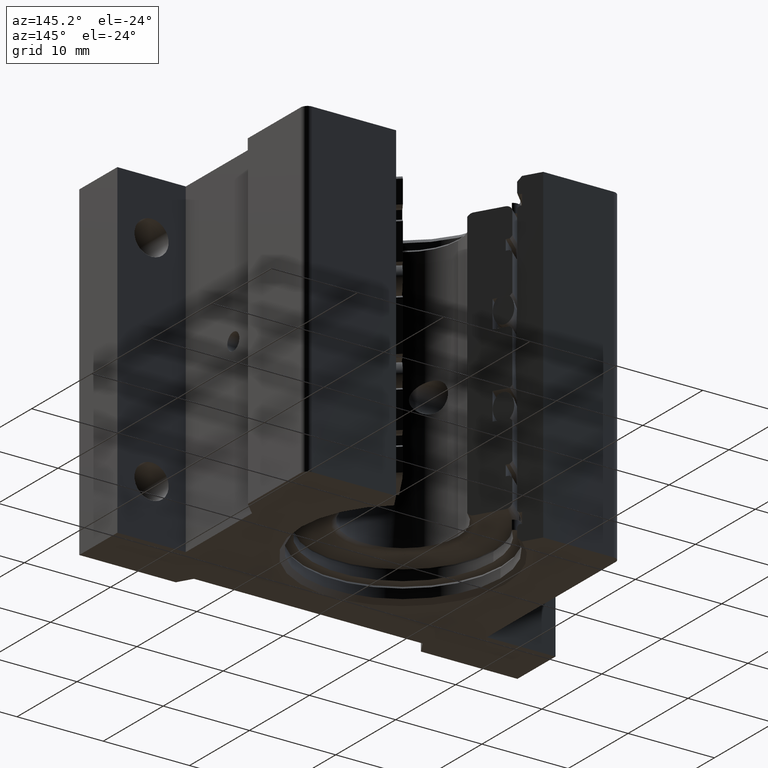
[diagram: clean part render]
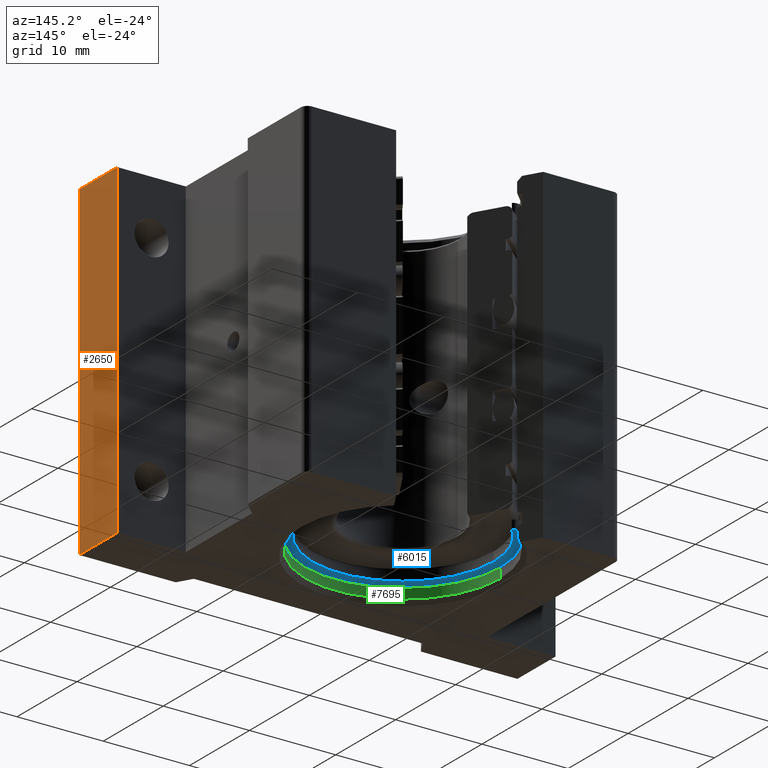
[diagram: same view with three faces highlighted in distinct colors, each labeled with its STEP entity id]
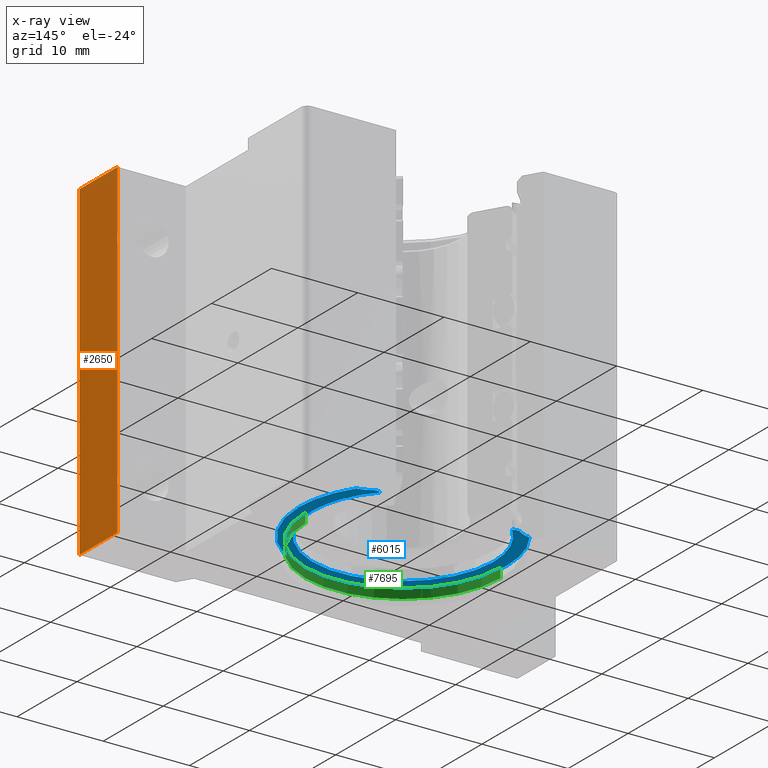
[diagram: x-ray of the same camera — body ghosted, the three highlighted faces saturated]
A machine part, auxiliary view with three faces highlighted in distinct colors.
The next image is the same camera in x-ray (body ghosted, the three faces saturated) — at least one of them is partly hidden behind the body in this view.
Their STEP definitions:

[orange] entity #2650 — the highlighted planar face has unit normal (1, 0, 0).
#744 = LINE ( 'NONE', #3988, #3602 ) ;
#786 = ORIENTED_EDGE ( 'NONE', *, *, #4905, .F. ) ;
#937 = CARTESIAN_POINT ( 'NONE',  ( 1.000000000000000000, 0.000000000000000000, 0.7499999999999998890 ) ) ;
#1093 = VERTEX_POINT ( 'NONE', #4707 ) ;
#1240 = FACE_OUTER_BOUND ( 'NONE', #9187, .T. ) ;
#1246 = CARTESIAN_POINT ( 'NONE',  ( 1.000000000000000000, -0.6870000000000000551, -1.162984563876181765 ) ) ;
#1397 = ORIENTED_EDGE ( 'NONE', *, *, #4622, .F. ) ;
#1400 = LINE ( 'NONE', #1246, #4069 ) ;
#1642 = DIRECTION ( 'NONE',  ( 0.000000000000000000, 0.000000000000000000, 1.000000000000000000 ) ) ;
#1986 = CARTESIAN_POINT ( 'NONE',  ( 1.000000000000000000, -0.4369999999999997220, 0.7499999999999998890 ) ) ;
#2650 = ADVANCED_FACE ( 'NONE', ( #1240 ), #4508, .T. ) ;
#3602 = VECTOR ( 'NONE', #1642, 39.37007874015748143 ) ;
#3988 = CARTESIAN_POINT ( 'NONE',  ( 1.000000000000000000, -0.4369999999999997220, -1.162984563876181765 ) ) ;
#4069 = VECTOR ( 'NONE', #4658, 39.37007874015748143 ) ;
#4189 = DIRECTION ( 'NONE',  ( 0.000000000000000000, 1.000000000000000000, -0.000000000000000000 ) ) ;
#4468 = EDGE_CURVE ( 'NONE', #7641, #8095, #5016, .T. ) ;
#4508 = PLANE ( 'NONE',  #8499 ) ;
#4622 = EDGE_CURVE ( 'NONE', #1093, #7449, #6269, .T. ) ;
#4658 = DIRECTION ( 'NONE',  ( -0.000000000000000000, 0.000000000000000000, 1.000000000000000000 ) ) ;
#4707 = CARTESIAN_POINT ( 'NONE',  ( 1.000000000000000000, -0.4369999999999997220, -0.7499999999999998890 ) ) ;
#4905 = EDGE_CURVE ( 'NONE', #7449, #7641, #1400, .T. ) ;
#5016 = LINE ( 'NONE', #937, #6521 ) ;
#5195 = ORIENTED_EDGE ( 'NONE', *, *, #4468, .F. ) ;
#5628 = CARTESIAN_POINT ( 'NONE',  ( 1.000000000000000000, 0.000000000000000000, -1.162984563876181765 ) ) ;
#5685 = DIRECTION ( 'NONE',  ( 0.000000000000000000, 0.000000000000000000, -1.000000000000000000 ) ) ;
#6043 = CARTESIAN_POINT ( 'NONE',  ( 1.000000000000000000, -0.6870000000000000551, 0.7499999999999998890 ) ) ;
#6219 = CARTESIAN_POINT ( 'NONE',  ( 1.000000000000000000, 0.000000000000000000, -0.7499999999999998890 ) ) ;
#6269 = LINE ( 'NONE', #6219, #6492 ) ;
#6492 = VECTOR ( 'NONE', #7931, 39.37007874015748143 ) ;
#6521 = VECTOR ( 'NONE', #4189, 39.37007874015748143 ) ;
#7449 = VERTEX_POINT ( 'NONE', #10574 ) ;
#7641 = VERTEX_POINT ( 'NONE', #6043 ) ;
#7931 = DIRECTION ( 'NONE',  ( 0.000000000000000000, -1.000000000000000000, 0.000000000000000000 ) ) ;
#8095 = VERTEX_POINT ( 'NONE', #1986 ) ;
#8103 = ORIENTED_EDGE ( 'NONE', *, *, #10170, .T. ) ;
#8499 = AXIS2_PLACEMENT_3D ( 'NONE', #5628, #8936, #5685 ) ;
#8936 = DIRECTION ( 'NONE',  ( 1.000000000000000000, -0.000000000000000000, 0.000000000000000000 ) ) ;
#9187 = EDGE_LOOP ( 'NONE', ( #786, #1397, #8103, #5195 ) ) ;
#10170 = EDGE_CURVE ( 'NONE', #1093, #8095, #744, .T. ) ;
#10574 = CARTESIAN_POINT ( 'NONE',  ( 1.000000000000000000, -0.6870000000000000551, -0.7499999999999998890 ) ) ;

[blue] entity #6015 — the highlighted planar face has unit normal (0, 0, -1).
#113 = DIRECTION ( 'NONE',  ( -1.000000000000000000, 0.000000000000000000, 0.000000000000000000 ) ) ;
#141 = VERTEX_POINT ( 'NONE', #2462 ) ;
#240 = DIRECTION ( 'NONE',  ( -1.000000000000000000, 0.000000000000000000, 0.000000000000000000 ) ) ;
#344 = CIRCLE ( 'NONE', #8418, 0.4747500000000000608 ) ;
#507 = CIRCLE ( 'NONE', #6528, 0.1199999999999999539 ) ;
#803 = CARTESIAN_POINT ( 'NONE',  ( 0.000000000000000000, 2.561107494060246644E-16, -0.6707500000000001794 ) ) ;
#868 = CIRCLE ( 'NONE', #8247, 0.02999999999999998848 ) ;
#958 = ORIENTED_EDGE ( 'NONE', *, *, #7810, .T. ) ;
#1103 = PLANE ( 'NONE',  #10480 ) ;
#1615 = EDGE_CURVE ( 'NONE', #9616, #6131, #2936, .T. ) ;
#1713 = ORIENTED_EDGE ( 'NONE', *, *, #8007, .T. ) ;
#1894 = DIRECTION ( 'NONE',  ( -1.000000000000000000, 0.000000000000000000, 0.000000000000000000 ) ) ;
#2156 = CARTESIAN_POINT ( 'NONE',  ( -0.3010000000000000453, 0.2824208960045275774, -0.6707500000000001794 ) ) ;
#2223 = AXIS2_PLACEMENT_3D ( 'NONE', #8393, #9268, #3633 ) ;
#2462 = CARTESIAN_POINT ( 'NONE',  ( 0.3010000000000000453, 0.2824208960045275774, -0.6707500000000001794 ) ) ;
#2536 = AXIS2_PLACEMENT_3D ( 'NONE', #803, #3248, #6626 ) ;
#2609 = EDGE_LOOP ( 'NONE', ( #1713, #6742, #9746, #958, #5203, #7757, #8280, #6495, #8589, #4176 ) ) ;
#2643 = CARTESIAN_POINT ( 'NONE',  ( 0.000000000000000000, 2.561107494060246644E-16, -0.6707500000000001794 ) ) ;
#2799 = CARTESIAN_POINT ( 'NONE',  ( 0.3952844174025038071, 0.2629406622391511905, -0.6707500000000001794 ) ) ;
#2835 = AXIS2_PLACEMENT_3D ( 'NONE', #8998, #8396, #9200 ) ;
#2936 = CIRCLE ( 'NONE', #3093, 0.4127500000000000613 ) ;
#2985 = CARTESIAN_POINT ( 'NONE',  ( 0.3381400017549150983, 0.2843754470130484546, -0.6707500000000001794 ) ) ;
#3014 = CARTESIAN_POINT ( 'NONE',  ( -0.3952844174025038071, 0.2629406622391511905, -0.6707500000000001794 ) ) ;
#3093 = AXIS2_PLACEMENT_3D ( 'NONE', #6046, #5188, #240 ) ;
#3119 = DIRECTION ( 'NONE',  ( 1.000000000000000000, 0.000000000000000000, 0.000000000000000000 ) ) ;
#3154 = CARTESIAN_POINT ( 'NONE',  ( 0.4127500000000000613, 2.561107494060246644E-16, -0.6707500000000001794 ) ) ;
#3248 = DIRECTION ( 'NONE',  ( 0.000000000000000000, 0.000000000000000000, -1.000000000000000000 ) ) ;
#3584 = CIRCLE ( 'NONE', #9980, 0.4127500000000000613 ) ;
#3633 = DIRECTION ( 'NONE',  ( -1.000000000000000000, 0.000000000000000000, 0.000000000000000000 ) ) ;
#3750 = EDGE_CURVE ( 'NONE', #4681, #141, #5783, .T. ) ;
#3946 = CARTESIAN_POINT ( 'NONE',  ( -0.4747500000000000608, 3.142508561955452494E-16, -0.6707500000000001794 ) ) ;
#4023 = VERTEX_POINT ( 'NONE', #10029 ) ;
#4045 = VERTEX_POINT ( 'NONE', #2985 ) ;
#4101 = CIRCLE ( 'NONE', #2223, 0.1199999999999999539 ) ;
#4176 = ORIENTED_EDGE ( 'NONE', *, *, #5538, .T. ) ;
#4278 = EDGE_CURVE ( 'NONE', #8701, #8913, #10130, .T. ) ;
#4350 = CARTESIAN_POINT ( 'NONE',  ( 0.000000000000000000, 2.561107494060246644E-16, -0.6707500000000001794 ) ) ;
#4543 = VERTEX_POINT ( 'NONE', #2799 ) ;
#4648 = EDGE_CURVE ( 'NONE', #4543, #8701, #5442, .T. ) ;
#4681 = VERTEX_POINT ( 'NONE', #3154 ) ;
#4959 = DIRECTION ( 'NONE',  ( 0.000000000000000000, 0.000000000000000000, -1.000000000000000000 ) ) ;
#5188 = DIRECTION ( 'NONE',  ( 0.000000000000000000, -0.000000000000000000, 1.000000000000000000 ) ) ;
#5203 = ORIENTED_EDGE ( 'NONE', *, *, #3750, .T. ) ;
#5442 = CIRCLE ( 'NONE', #8561, 0.4747500000000000608 ) ;
#5538 = EDGE_CURVE ( 'NONE', #8913, #9411, #344, .T. ) ;
#5597 = CARTESIAN_POINT ( 'NONE',  ( 0.000000000000000000, 2.561107494060246644E-16, -0.6707500000000001794 ) ) ;
#5601 = CARTESIAN_POINT ( 'NONE',  ( 0.4074712295578439281, 0.3823202317202414324, -0.6707500000000004015 ) ) ;
#5758 = DIRECTION ( 'NONE',  ( -1.000000000000000000, 0.000000000000000000, 0.000000000000000000 ) ) ;
#5783 = CIRCLE ( 'NONE', #8557, 0.4127500000000000613 ) ;
#5979 = DIRECTION ( 'NONE',  ( -1.000000000000000000, 0.000000000000000000, 0.000000000000000000 ) ) ;
#6015 = ADVANCED_FACE ( 'NONE', ( #9225 ), #1103, .T. ) ;
#6046 = CARTESIAN_POINT ( 'NONE',  ( 0.000000000000000000, 2.561107494060246644E-16, -0.6707500000000001794 ) ) ;
#6131 = VERTEX_POINT ( 'NONE', #9449 ) ;
#6495 = ORIENTED_EDGE ( 'NONE', *, *, #4648, .T. ) ;
#6528 = AXIS2_PLACEMENT_3D ( 'NONE', #5601, #8806, #3119 ) ;
#6626 = DIRECTION ( 'NONE',  ( -1.000000000000000000, 0.000000000000000000, 0.000000000000000000 ) ) ;
#6641 = DIRECTION ( 'NONE',  ( 0.000000000000000000, 0.000000000000000000, -1.000000000000000000 ) ) ;
#6742 = ORIENTED_EDGE ( 'NONE', *, *, #8650, .T. ) ;
#6812 = DIRECTION ( 'NONE',  ( 0.000000000000000000, 0.000000000000000000, -1.000000000000000000 ) ) ;
#7359 = EDGE_CURVE ( 'NONE', #4543, #4045, #507, .T. ) ;
#7405 = DIRECTION ( 'NONE',  ( 0.000000000000000000, -0.000000000000000000, 1.000000000000000000 ) ) ;
#7515 = DIRECTION ( 'NONE',  ( -1.000000000000000000, 0.000000000000000000, 0.000000000000000000 ) ) ;
#7757 = ORIENTED_EDGE ( 'NONE', *, *, #7804, .T. ) ;
#7804 = EDGE_CURVE ( 'NONE', #141, #4045, #868, .T. ) ;
#7810 = EDGE_CURVE ( 'NONE', #6131, #4681, #3584, .T. ) ;
#8007 = EDGE_CURVE ( 'NONE', #9411, #4023, #4101, .T. ) ;
#8181 = CARTESIAN_POINT ( 'NONE',  ( 0.4747500000000000608, 2.561107494060246644E-16, -0.6707500000000001794 ) ) ;
#8244 = DIRECTION ( 'NONE',  ( -1.000000000000000000, 0.000000000000000000, 0.000000000000000000 ) ) ;
#8247 = AXIS2_PLACEMENT_3D ( 'NONE', #9278, #6812, #1894 ) ;
#8280 = ORIENTED_EDGE ( 'NONE', *, *, #7359, .F. ) ;
#8393 = CARTESIAN_POINT ( 'NONE',  ( -0.4074712295578439281, 0.3823202317202414324, -0.6707500000000004015 ) ) ;
#8396 = DIRECTION ( 'NONE',  ( 0.000000000000000000, 0.000000000000000000, -1.000000000000000000 ) ) ;
#8418 = AXIS2_PLACEMENT_3D ( 'NONE', #9825, #9005, #113 ) ;
#8531 = CIRCLE ( 'NONE', #2835, 0.03000000000000002318 ) ;
#8557 = AXIS2_PLACEMENT_3D ( 'NONE', #5597, #7405, #5758 ) ;
#8561 = AXIS2_PLACEMENT_3D ( 'NONE', #9820, #6641, #8244 ) ;
#8589 = ORIENTED_EDGE ( 'NONE', *, *, #4278, .T. ) ;
#8650 = EDGE_CURVE ( 'NONE', #4023, #9616, #8531, .T. ) ;
#8701 = VERTEX_POINT ( 'NONE', #8181 ) ;
#8806 = DIRECTION ( 'NONE',  ( 0.000000000000000000, 0.000000000000000000, -1.000000000000000000 ) ) ;
#8913 = VERTEX_POINT ( 'NONE', #3946 ) ;
#8998 = CARTESIAN_POINT ( 'NONE',  ( -0.3208071948041829047, 0.2598892508362502518, -0.6707500000000001794 ) ) ;
#9005 = DIRECTION ( 'NONE',  ( 0.000000000000000000, 0.000000000000000000, -1.000000000000000000 ) ) ;
#9200 = DIRECTION ( 'NONE',  ( -1.000000000000000000, 0.000000000000000000, 0.000000000000000000 ) ) ;
#9225 = FACE_OUTER_BOUND ( 'NONE', #2609, .T. ) ;
#9268 = DIRECTION ( 'NONE',  ( 0.000000000000000000, -0.000000000000000000, 1.000000000000000000 ) ) ;
#9278 = CARTESIAN_POINT ( 'NONE',  ( 0.3208071948041829047, 0.2598892508362502518, -0.6707500000000001794 ) ) ;
#9373 = DIRECTION ( 'NONE',  ( 0.000000000000000000, -0.000000000000000000, 1.000000000000000000 ) ) ;
#9411 = VERTEX_POINT ( 'NONE', #3014 ) ;
#9449 = CARTESIAN_POINT ( 'NONE',  ( -0.4127500000000000613, 3.066580460408316516E-16, -0.6707500000000001794 ) ) ;
#9616 = VERTEX_POINT ( 'NONE', #2156 ) ;
#9746 = ORIENTED_EDGE ( 'NONE', *, *, #1615, .T. ) ;
#9820 = CARTESIAN_POINT ( 'NONE',  ( 0.000000000000000000, 2.561107494060246644E-16, -0.6707500000000001794 ) ) ;
#9825 = CARTESIAN_POINT ( 'NONE',  ( 0.000000000000000000, 2.561107494060246644E-16, -0.6707500000000001794 ) ) ;
#9980 = AXIS2_PLACEMENT_3D ( 'NONE', #4350, #9373, #5979 ) ;
#10029 = CARTESIAN_POINT ( 'NONE',  ( -0.3381400017549150983, 0.2843754470130484546, -0.6707500000000001794 ) ) ;
#10130 = CIRCLE ( 'NONE', #2536, 0.4747500000000000608 ) ;
#10480 = AXIS2_PLACEMENT_3D ( 'NONE', #2643, #4959, #7515 ) ;

[green] entity #7695 — the highlighted cylindrical surface (partial cylindrical patch) has radius 11.303 mm, axis along (0, 0, 1).
#127 = VERTEX_POINT ( 'NONE', #4883 ) ;
#575 = LINE ( 'NONE', #3065, #6360 ) ;
#1332 = CARTESIAN_POINT ( 'NONE',  ( 0.4450000000000000067, 0.000000000000000000, -0.6867499999999999716 ) ) ;
#1581 = CARTESIAN_POINT ( 'NONE',  ( 0.4450000000000000067, 0.000000000000000000, -0.7300000000000000933 ) ) ;
#1671 = CARTESIAN_POINT ( 'NONE',  ( -0.4450000000000000067, 5.449678256205722031E-17, -0.7300000000000000933 ) ) ;
#2049 = AXIS2_PLACEMENT_3D ( 'NONE', #8321, #7587, #5832 ) ;
#2203 = VECTOR ( 'NONE', #6870, 39.37007874015748143 ) ;
#3065 = CARTESIAN_POINT ( 'NONE',  ( 0.4450000000000000067, 0.000000000000000000, -0.7500019685039369666 ) ) ;
#3804 = VERTEX_POINT ( 'NONE', #1581 ) ;
#3912 = ORIENTED_EDGE ( 'NONE', *, *, #7183, .T. ) ;
#4133 = DIRECTION ( 'NONE',  ( 1.000000000000000000, 0.000000000000000000, 0.000000000000000000 ) ) ;
#4264 = AXIS2_PLACEMENT_3D ( 'NONE', #6764, #5701, #4133 ) ;
#4401 = CARTESIAN_POINT ( 'NONE',  ( -0.4450000000000000067, 5.449678256205722031E-17, -0.7500019685039369666 ) ) ;
#4619 = CARTESIAN_POINT ( 'NONE',  ( 0.000000000000000000, 0.000000000000000000, -0.7300000000000000933 ) ) ;
#4637 = VERTEX_POINT ( 'NONE', #1671 ) ;
#4883 = CARTESIAN_POINT ( 'NONE',  ( -0.4450000000000000067, 5.449678256205722031E-17, -0.6867499999999999716 ) ) ;
#4948 = CYLINDRICAL_SURFACE ( 'NONE', #4264, 0.4450000000000000067 ) ;
#5069 = VERTEX_POINT ( 'NONE', #1332 ) ;
#5282 = CIRCLE ( 'NONE', #7190, 0.4450000000000000067 ) ;
#5335 = LINE ( 'NONE', #4401, #2203 ) ;
#5425 = EDGE_CURVE ( 'NONE', #3804, #4637, #5282, .T. ) ;
#5701 = DIRECTION ( 'NONE',  ( -0.000000000000000000, -0.000000000000000000, 1.000000000000000000 ) ) ;
#5832 = DIRECTION ( 'NONE',  ( -1.000000000000000000, 0.000000000000000000, 0.000000000000000000 ) ) ;
#5934 = ORIENTED_EDGE ( 'NONE', *, *, #6389, .T. ) ;
#5945 = ORIENTED_EDGE ( 'NONE', *, *, #7352, .F. ) ;
#6360 = VECTOR ( 'NONE', #6395, 39.37007874015748143 ) ;
#6389 = EDGE_CURVE ( 'NONE', #4637, #127, #5335, .T. ) ;
#6395 = DIRECTION ( 'NONE',  ( -0.000000000000000000, -0.000000000000000000, 1.000000000000000000 ) ) ;
#6764 = CARTESIAN_POINT ( 'NONE',  ( 0.000000000000000000, 0.000000000000000000, -0.7500019685039369666 ) ) ;
#6870 = DIRECTION ( 'NONE',  ( -0.000000000000000000, -0.000000000000000000, 1.000000000000000000 ) ) ;
#7183 = EDGE_CURVE ( 'NONE', #127, #5069, #7556, .T. ) ;
#7190 = AXIS2_PLACEMENT_3D ( 'NONE', #4619, #7933, #10406 ) ;
#7352 = EDGE_CURVE ( 'NONE', #3804, #5069, #575, .T. ) ;
#7556 = CIRCLE ( 'NONE', #2049, 0.4450000000000000067 ) ;
#7587 = DIRECTION ( 'NONE',  ( 0.000000000000000000, 0.000000000000000000, 1.000000000000000000 ) ) ;
#7695 = ADVANCED_FACE ( 'NONE', ( #9880 ), #4948, .F. ) ;
#7933 = DIRECTION ( 'NONE',  ( -0.000000000000000000, -0.000000000000000000, -1.000000000000000000 ) ) ;
#8314 = EDGE_LOOP ( 'NONE', ( #9183, #5934, #3912, #5945 ) ) ;
#8321 = CARTESIAN_POINT ( 'NONE',  ( 0.000000000000000000, 0.000000000000000000, -0.6867499999999999716 ) ) ;
#9183 = ORIENTED_EDGE ( 'NONE', *, *, #5425, .T. ) ;
#9880 = FACE_OUTER_BOUND ( 'NONE', #8314, .T. ) ;
#10406 = DIRECTION ( 'NONE',  ( 1.000000000000000000, 0.000000000000000000, 0.000000000000000000 ) ) ;